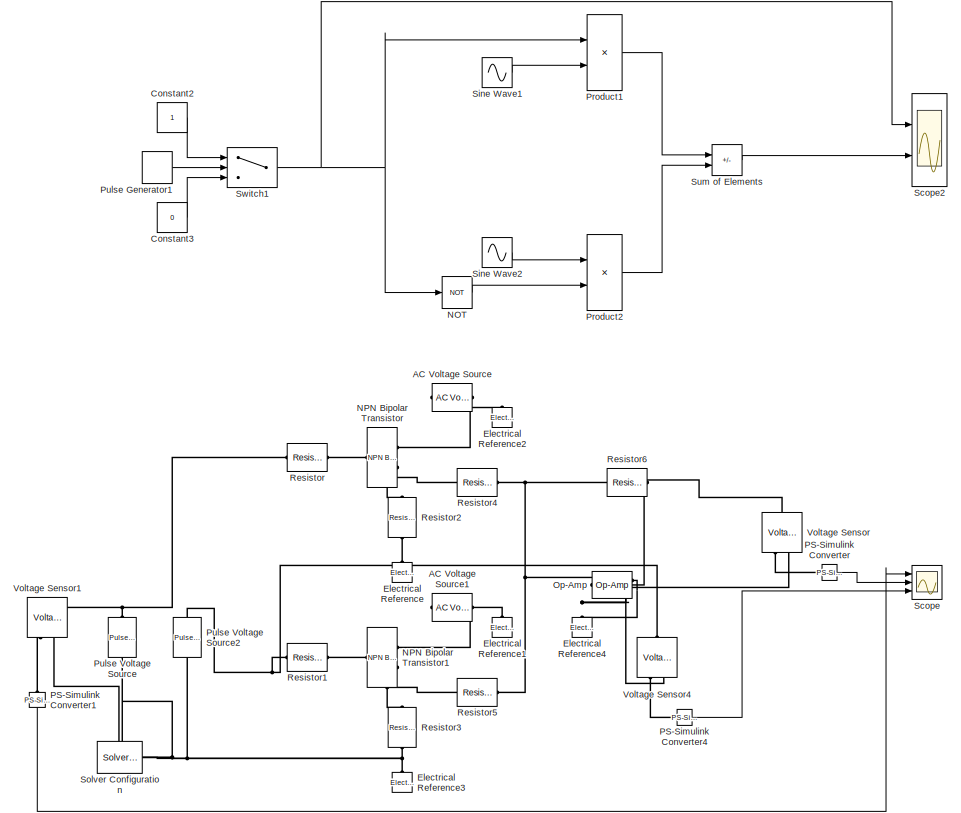
[diagram: root canvas - part 1/8, top left region]
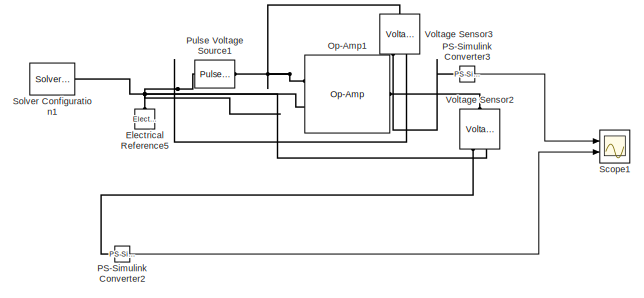
[diagram: root canvas - part 2/8, top center region]
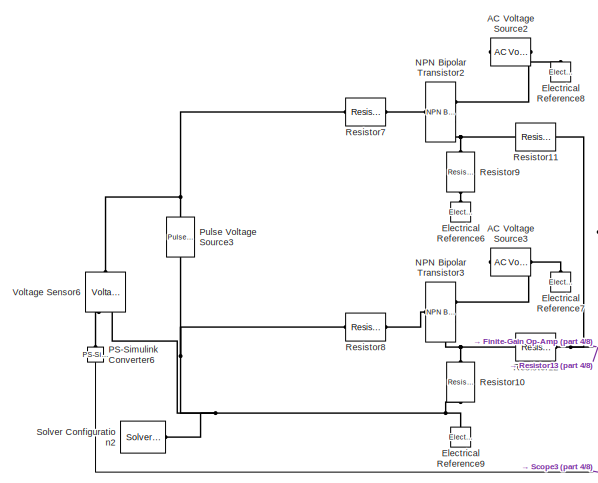
[diagram: root canvas - part 3/8, top left region]
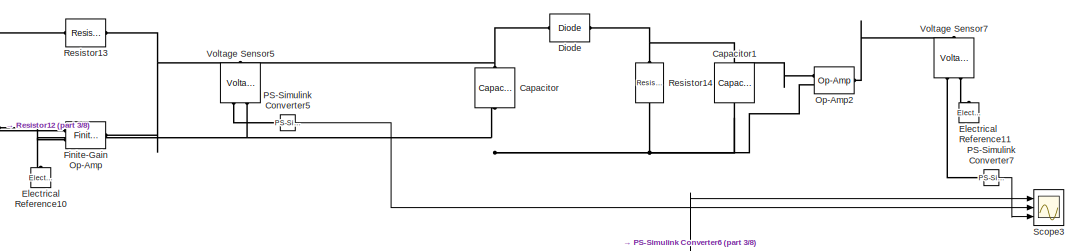
[diagram: root canvas - part 4/8, top center region]
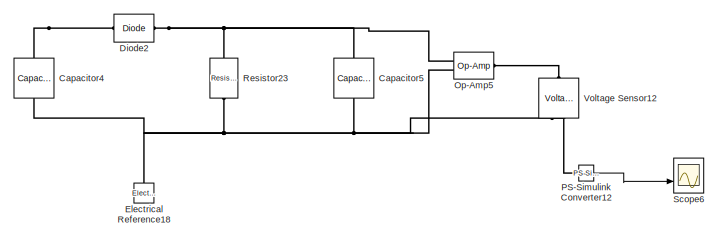
[diagram: root canvas - part 5/8, middle right region]
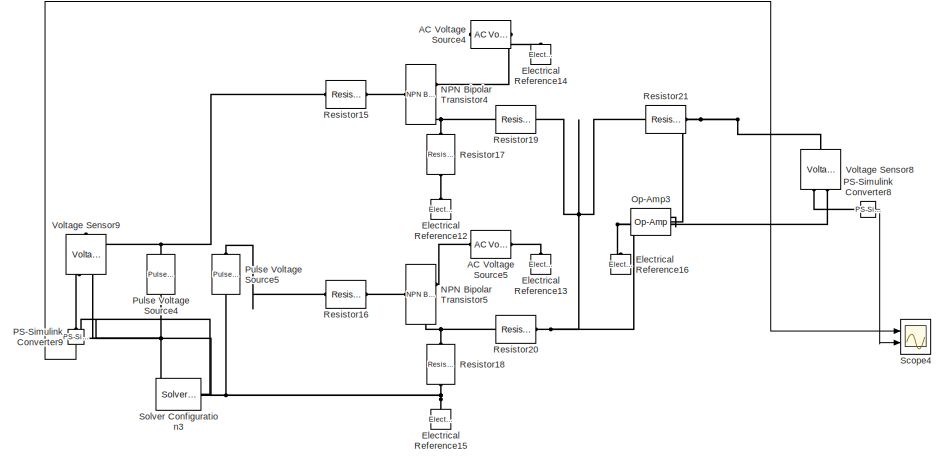
[diagram: root canvas - part 6/8, middle left region]
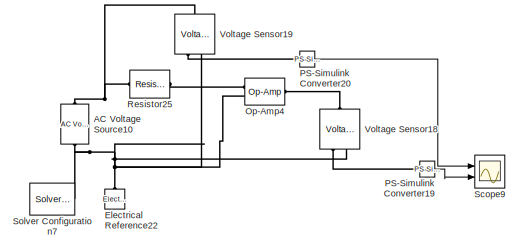
[diagram: root canvas - part 7/8, bottom right region]
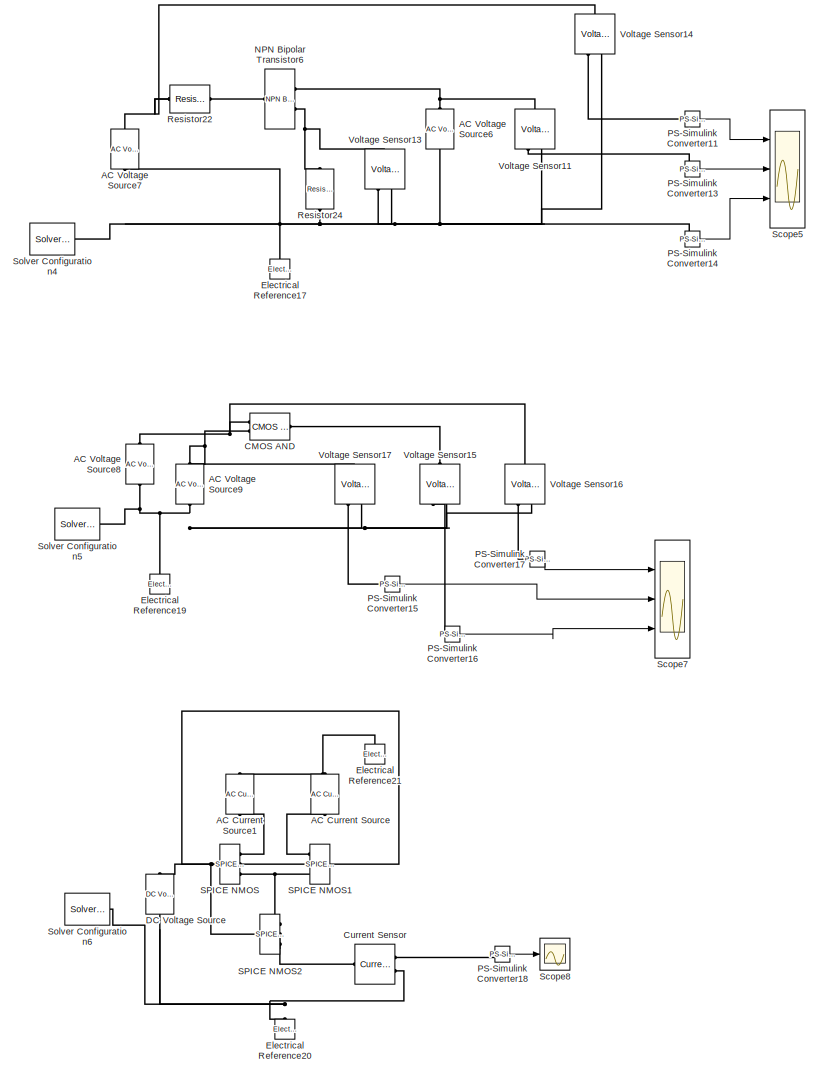
[diagram: root canvas - part 8/8, bottom left region]
MODEL slx_572a8d1ae359
KIND model
CONFIG AbsTol = auto
CONFIG EnableMultiTasking = off
CONFIG FixedStep = auto
CONFIG MaxStep = auto
CONFIG MinStep = auto
CONFIG RelTol = 1e-3
CONFIG SampleTimeConstraint = Unconstrained
CONFIG SolverName = VariableStepAuto
CONFIG StartTime = 0.0
CONFIG StopTime = 10
BLOCK [Reference] AC Current Source  REF=fl_lib/Electrical/Electrical Sources/AC Current Source
  Commented = on
  NameLocation = left
  Ports = [0, 0, 0, 0, 0, 1, 1]
  SourceBlock = fl_lib/Electrical/Electrical Sources/AC Current Source
  SourceProductBaseCode = SS
  SourceType = AC Current Source
BLOCK [Reference] AC Current Source1  REF=fl_lib/Electrical/Electrical Sources/AC Current Source
  Commented = on
  NameLocation = left
  Ports = [0, 0, 0, 0, 0, 1, 1]
  SourceBlock = fl_lib/Electrical/Electrical Sources/AC Current Source
  SourceProductBaseCode = SS
  SourceType = AC Current Source
BLOCK [Reference] AC Voltage Source  REF=fl_lib/Electrical/Electrical Sources/AC Voltage Source
  Commented = on
  NameLocation = top
  Ports = [0, 0, 0, 0, 0, 1, 1]
  SourceBlock = fl_lib/Electrical/Electrical Sources/AC Voltage Source
  SourceProductBaseCode = SS
  SourceType = AC Voltage Source
BLOCK [Reference] AC Voltage Source1  REF=fl_lib/Electrical/Electrical Sources/AC Voltage Source
  Commented = on
  NameLocation = top
  Ports = [0, 0, 0, 0, 0, 1, 1]
  SourceBlock = fl_lib/Electrical/Electrical Sources/AC Voltage Source
  SourceProductBaseCode = SS
  SourceType = AC Voltage Source
BLOCK [Reference] AC Voltage Source10  REF=fl_lib/Electrical/Electrical Sources/AC Voltage Source
  Commented = on
  NameLocation = right
  Ports = [0, 0, 0, 0, 0, 1, 1]
  SourceBlock = fl_lib/Electrical/Electrical Sources/AC Voltage Source
  SourceProductBaseCode = SS
  SourceType = AC Voltage Source
BLOCK [Reference] AC Voltage Source2  REF=fl_lib/Electrical/Electrical Sources/AC Voltage Source
  Commented = on
  NameLocation = top
  Ports = [0, 0, 0, 0, 0, 1, 1]
  SourceBlock = fl_lib/Electrical/Electrical Sources/AC Voltage Source
  SourceProductBaseCode = SS
  SourceType = AC Voltage Source
BLOCK [Reference] AC Voltage Source3  REF=fl_lib/Electrical/Electrical Sources/AC Voltage Source
  Commented = on
  NameLocation = top
  Ports = [0, 0, 0, 0, 0, 1, 1]
  SourceBlock = fl_lib/Electrical/Electrical Sources/AC Voltage Source
  SourceProductBaseCode = SS
  SourceType = AC Voltage Source
BLOCK [Reference] AC Voltage Source4  REF=fl_lib/Electrical/Electrical Sources/AC Voltage Source
  NameLocation = top
  Ports = [0, 0, 0, 0, 0, 1, 1]
  SourceBlock = fl_lib/Electrical/Electrical Sources/AC Voltage Source
  SourceProductBaseCode = SS
  SourceType = AC Voltage Source
BLOCK [Reference] AC Voltage Source5  REF=fl_lib/Electrical/Electrical Sources/AC Voltage Source
  NameLocation = top
  Ports = [0, 0, 0, 0, 0, 1, 1]
  SourceBlock = fl_lib/Electrical/Electrical Sources/AC Voltage Source
  SourceProductBaseCode = SS
  SourceType = AC Voltage Source
BLOCK [Reference] AC Voltage Source6  REF=fl_lib/Electrical/Electrical Sources/AC Voltage Source
  Commented = on
  NameLocation = right
  Ports = [0, 0, 0, 0, 0, 1, 1]
  SourceBlock = fl_lib/Electrical/Electrical Sources/AC Voltage Source
  SourceProductBaseCode = SS
  SourceType = AC Voltage Source
BLOCK [Reference] AC Voltage Source7  REF=fl_lib/Electrical/Electrical Sources/AC Voltage Source
  Commented = on
  NameLocation = right
  Ports = [0, 0, 0, 0, 0, 1, 1]
  SourceBlock = fl_lib/Electrical/Electrical Sources/AC Voltage Source
  SourceProductBaseCode = SS
  SourceType = AC Voltage Source
BLOCK [Reference] AC Voltage Source8  REF=fl_lib/Electrical/Electrical Sources/AC Voltage Source
  Commented = on
  NameLocation = right
  Ports = [0, 0, 0, 0, 0, 1, 1]
  SourceBlock = fl_lib/Electrical/Electrical Sources/AC Voltage Source
  SourceProductBaseCode = SS
  SourceType = AC Voltage Source
BLOCK [Reference] AC Voltage Source9  REF=fl_lib/Electrical/Electrical Sources/AC Voltage Source
  Commented = on
  NameLocation = right
  Ports = [0, 0, 0, 0, 0, 1, 1]
  SourceBlock = fl_lib/Electrical/Electrical Sources/AC Voltage Source
  SourceProductBaseCode = SS
  SourceType = AC Voltage Source
BLOCK [Reference] CMOS AND  REF=ee_lib/Integrated Circuits/Logic/CMOS AND
  Commented = on
  Ports = [0, 0, 0, 0, 0, 2, 1]
  SourceBlock = ee_lib/Integrated Circuits/Logic/CMOS AND
  SourceProductBaseCode = PS
  SourceType = CMOS AND
BLOCK [Reference] Capacitor  REF=fl_lib/Electrical/Electrical Elements/Capacitor
  Commented = on
  NameLocation = left
  Ports = [0, 0, 0, 0, 0, 1, 1]
  SourceBlock = fl_lib/Electrical/Electrical Elements/Capacitor
  SourceProductBaseCode = SS
  SourceType = Capacitor
BLOCK [Reference] Capacitor1  REF=fl_lib/Electrical/Electrical Elements/Capacitor
  Commented = on
  NameLocation = left
  Ports = [0, 0, 0, 0, 0, 1, 1]
  SourceBlock = fl_lib/Electrical/Electrical Elements/Capacitor
  SourceProductBaseCode = SS
  SourceType = Capacitor
BLOCK [Reference] Capacitor4  REF=fl_lib/Electrical/Electrical Elements/Capacitor
  Commented = on
  NameLocation = left
  Ports = [0, 0, 0, 0, 0, 1, 1]
  SourceBlock = fl_lib/Electrical/Electrical Elements/Capacitor
  SourceProductBaseCode = SS
  SourceType = Capacitor
BLOCK [Reference] Capacitor5  REF=fl_lib/Electrical/Electrical Elements/Capacitor
  Commented = on
  NameLocation = left
  Ports = [0, 0, 0, 0, 0, 1, 1]
  SourceBlock = fl_lib/Electrical/Electrical Elements/Capacitor
  SourceProductBaseCode = SS
  SourceType = Capacitor
BLOCK [Constant] Constant2
  Commented = on
BLOCK [Constant] Constant3
  Commented = on
  Value = 0
BLOCK [Reference] Current Sensor  REF=fl_lib/Electrical/Electrical Sensors/Current Sensor
  Commented = on
  Ports = [0, 0, 0, 0, 0, 1, 2]
  SourceBlock = fl_lib/Electrical/Electrical Sensors/Current Sensor
  SourceProductBaseCode = SS
  SourceType = Current Sensor
BLOCK [Reference] DC Voltage Source  REF=fl_lib/Electrical/Electrical Sources/DC Voltage Source
  Commented = on
  NameLocation = right
  Ports = [0, 0, 0, 0, 0, 1, 1]
  SourceBlock = fl_lib/Electrical/Electrical Sources/DC Voltage Source
  SourceProductBaseCode = SS
  SourceType = DC Voltage Source
BLOCK [Reference] Diode  REF=ee_lib/Semiconductors &
Converters/Diode
  Commented = on
  Ports = [0, 0, 0, 0, 0, 1, 1]
  SourceBlock = ee_lib/Semiconductors &\nConverters/Diode
  SourceProductBaseCode = PS
  SourceType = Diode
BLOCK [Reference] Diode2  REF=ee_lib/Semiconductors &
Converters/Diode
  Commented = on
  Ports = [0, 0, 0, 0, 0, 1, 1]
  SourceBlock = ee_lib/Semiconductors &\nConverters/Diode
  SourceProductBaseCode = PS
  SourceType = Diode
BLOCK [Reference] Electrical Reference  REF=fl_lib/Electrical/Electrical Elements/Electrical Reference
  Commented = on
  NameLocation = right
  Ports = [0, 0, 0, 0, 0, 1]
  SourceBlock = fl_lib/Electrical/Electrical Elements/Electrical Reference
  SourceProductBaseCode = SS
  SourceType = Electrical Reference
BLOCK [Reference] Electrical Reference1  REF=fl_lib/Electrical/Electrical Elements/Electrical Reference
  Commented = on
  NameLocation = right
  Ports = [0, 0, 0, 0, 0, 1]
  SourceBlock = fl_lib/Electrical/Electrical Elements/Electrical Reference
  SourceProductBaseCode = SS
  SourceType = Electrical Reference
BLOCK [Reference] Electrical Reference10  REF=fl_lib/Electrical/Electrical Elements/Electrical Reference
  Commented = on
  NameLocation = right
  Ports = [0, 0, 0, 0, 0, 1]
  SourceBlock = fl_lib/Electrical/Electrical Elements/Electrical Reference
  SourceProductBaseCode = SS
  SourceType = Electrical Reference
BLOCK [Reference] Electrical Reference11  REF=fl_lib/Electrical/Electrical Elements/Electrical Reference
  Commented = on
  NameLocation = right
  Ports = [0, 0, 0, 0, 0, 1]
  SourceBlock = fl_lib/Electrical/Electrical Elements/Electrical Reference
  SourceProductBaseCode = SS
  SourceType = Electrical Reference
BLOCK [Reference] Electrical Reference12  REF=fl_lib/Electrical/Electrical Elements/Electrical Reference
  NameLocation = right
  Ports = [0, 0, 0, 0, 0, 1]
  SourceBlock = fl_lib/Electrical/Electrical Elements/Electrical Reference
  SourceProductBaseCode = SS
  SourceType = Electrical Reference
BLOCK [Reference] Electrical Reference13  REF=fl_lib/Electrical/Electrical Elements/Electrical Reference
  NameLocation = right
  Ports = [0, 0, 0, 0, 0, 1]
  SourceBlock = fl_lib/Electrical/Electrical Elements/Electrical Reference
  SourceProductBaseCode = SS
  SourceType = Electrical Reference
BLOCK [Reference] Electrical Reference14  REF=fl_lib/Electrical/Electrical Elements/Electrical Reference
  NameLocation = right
  Ports = [0, 0, 0, 0, 0, 1]
  SourceBlock = fl_lib/Electrical/Electrical Elements/Electrical Reference
  SourceProductBaseCode = SS
  SourceType = Electrical Reference
BLOCK [Reference] Electrical Reference15  REF=fl_lib/Electrical/Electrical Elements/Electrical Reference
  NameLocation = right
  Ports = [0, 0, 0, 0, 0, 1]
  SourceBlock = fl_lib/Electrical/Electrical Elements/Electrical Reference
  SourceProductBaseCode = SS
  SourceType = Electrical Reference
BLOCK [Reference] Electrical Reference16  REF=fl_lib/Electrical/Electrical Elements/Electrical Reference
  NameLocation = right
  Ports = [0, 0, 0, 0, 0, 1]
  SourceBlock = fl_lib/Electrical/Electrical Elements/Electrical Reference
  SourceProductBaseCode = SS
  SourceType = Electrical Reference
BLOCK [Reference] Electrical Reference17  REF=fl_lib/Electrical/Electrical Elements/Electrical Reference
  Commented = on
  NameLocation = right
  Ports = [0, 0, 0, 0, 0, 1]
  SourceBlock = fl_lib/Electrical/Electrical Elements/Electrical Reference
  SourceProductBaseCode = SS
  SourceType = Electrical Reference
BLOCK [Reference] Electrical Reference18  REF=fl_lib/Electrical/Electrical Elements/Electrical Reference
  Commented = on
  NameLocation = right
  Ports = [0, 0, 0, 0, 0, 1]
  SourceBlock = fl_lib/Electrical/Electrical Elements/Electrical Reference
  SourceProductBaseCode = SS
  SourceType = Electrical Reference
BLOCK [Reference] Electrical Reference19  REF=fl_lib/Electrical/Electrical Elements/Electrical Reference
  Commented = on
  NameLocation = right
  Ports = [0, 0, 0, 0, 0, 1]
  SourceBlock = fl_lib/Electrical/Electrical Elements/Electrical Reference
  SourceProductBaseCode = SS
  SourceType = Electrical Reference
BLOCK [Reference] Electrical Reference2  REF=fl_lib/Electrical/Electrical Elements/Electrical Reference
  Commented = on
  NameLocation = right
  Ports = [0, 0, 0, 0, 0, 1]
  SourceBlock = fl_lib/Electrical/Electrical Elements/Electrical Reference
  SourceProductBaseCode = SS
  SourceType = Electrical Reference
BLOCK [Reference] Electrical Reference20  REF=fl_lib/Electrical/Electrical Elements/Electrical Reference
  Commented = on
  NameLocation = right
  Ports = [0, 0, 0, 0, 0, 1]
  SourceBlock = fl_lib/Electrical/Electrical Elements/Electrical Reference
  SourceProductBaseCode = SS
  SourceType = Electrical Reference
BLOCK [Reference] Electrical Reference21  REF=fl_lib/Electrical/Electrical Elements/Electrical Reference
  Commented = on
  NameLocation = right
  Ports = [0, 0, 0, 0, 0, 1]
  SourceBlock = fl_lib/Electrical/Electrical Elements/Electrical Reference
  SourceProductBaseCode = SS
  SourceType = Electrical Reference
BLOCK [Reference] Electrical Reference22  REF=fl_lib/Electrical/Electrical Elements/Electrical Reference
  Commented = on
  NameLocation = right
  Ports = [0, 0, 0, 0, 0, 1]
  SourceBlock = fl_lib/Electrical/Electrical Elements/Electrical Reference
  SourceProductBaseCode = SS
  SourceType = Electrical Reference
BLOCK [Reference] Electrical Reference3  REF=fl_lib/Electrical/Electrical Elements/Electrical Reference
  Commented = on
  NameLocation = right
  Ports = [0, 0, 0, 0, 0, 1]
  SourceBlock = fl_lib/Electrical/Electrical Elements/Electrical Reference
  SourceProductBaseCode = SS
  SourceType = Electrical Reference
BLOCK [Reference] Electrical Reference4  REF=fl_lib/Electrical/Electrical Elements/Electrical Reference
  Commented = on
  NameLocation = right
  Ports = [0, 0, 0, 0, 0, 1]
  SourceBlock = fl_lib/Electrical/Electrical Elements/Electrical Reference
  SourceProductBaseCode = SS
  SourceType = Electrical Reference
BLOCK [Reference] Electrical Reference5  REF=fl_lib/Electrical/Electrical Elements/Electrical Reference
  Commented = on
  NameLocation = right
  Ports = [0, 0, 0, 0, 0, 1]
  SourceBlock = fl_lib/Electrical/Electrical Elements/Electrical Reference
  SourceProductBaseCode = SS
  SourceType = Electrical Reference
BLOCK [Reference] Electrical Reference6  REF=fl_lib/Electrical/Electrical Elements/Electrical Reference
  Commented = on
  NameLocation = right
  Ports = [0, 0, 0, 0, 0, 1]
  SourceBlock = fl_lib/Electrical/Electrical Elements/Electrical Reference
  SourceProductBaseCode = SS
  SourceType = Electrical Reference
BLOCK [Reference] Electrical Reference7  REF=fl_lib/Electrical/Electrical Elements/Electrical Reference
  Commented = on
  NameLocation = right
  Ports = [0, 0, 0, 0, 0, 1]
  SourceBlock = fl_lib/Electrical/Electrical Elements/Electrical Reference
  SourceProductBaseCode = SS
  SourceType = Electrical Reference
BLOCK [Reference] Electrical Reference8  REF=fl_lib/Electrical/Electrical Elements/Electrical Reference
  Commented = on
  NameLocation = right
  Ports = [0, 0, 0, 0, 0, 1]
  SourceBlock = fl_lib/Electrical/Electrical Elements/Electrical Reference
  SourceProductBaseCode = SS
  SourceType = Electrical Reference
BLOCK [Reference] Electrical Reference9  REF=fl_lib/Electrical/Electrical Elements/Electrical Reference
  Commented = on
  NameLocation = right
  Ports = [0, 0, 0, 0, 0, 1]
  SourceBlock = fl_lib/Electrical/Electrical Elements/Electrical Reference
  SourceProductBaseCode = SS
  SourceType = Electrical Reference
BLOCK [Reference] Finite-Gain Op-Amp  REF=ee_lib/Integrated Circuits/Finite-Gain Op-Amp
  Commented = on
  Ports = [0, 0, 0, 0, 0, 2, 1]
  SourceBlock = ee_lib/Integrated Circuits/Finite-Gain Op-Amp
  SourceProductBaseCode = PS
  SourceType = Finite-Gain Op-Amp
BLOCK [Logic] NOT
  AllPortsSameDT = off
  Commented = on
  IconShape = distinctive
  Operator = NOT
  OutDataTypeStr = boolean
  Ports = [1, 1]
BLOCK [Reference] NPN Bipolar Transistor  REF=ee_lib/Semiconductors &
Converters/NPN Bipolar
Transistor
  Commented = on
  Ports = [0, 0, 0, 0, 0, 1, 2]
  SourceBlock = ee_lib/Semiconductors &\nConverters/NPN Bipolar\nTransistor
  SourceProductBaseCode = PS
  SourceType = NPN Bipolar\nTransistor
BLOCK [Reference] NPN Bipolar Transistor1  REF=ee_lib/Semiconductors &
Converters/NPN Bipolar
Transistor
  Commented = on
  Ports = [0, 0, 0, 0, 0, 1, 2]
  SourceBlock = ee_lib/Semiconductors &\nConverters/NPN Bipolar\nTransistor
  SourceProductBaseCode = PS
  SourceType = NPN Bipolar\nTransistor
BLOCK [Reference] NPN Bipolar Transistor2  REF=ee_lib/Semiconductors &
Converters/NPN Bipolar
Transistor
  Commented = on
  Ports = [0, 0, 0, 0, 0, 1, 2]
  SourceBlock = ee_lib/Semiconductors &\nConverters/NPN Bipolar\nTransistor
  SourceProductBaseCode = PS
  SourceType = NPN Bipolar\nTransistor
BLOCK [Reference] NPN Bipolar Transistor3  REF=ee_lib/Semiconductors &
Converters/NPN Bipolar
Transistor
  Commented = on
  Ports = [0, 0, 0, 0, 0, 1, 2]
  SourceBlock = ee_lib/Semiconductors &\nConverters/NPN Bipolar\nTransistor
  SourceProductBaseCode = PS
  SourceType = NPN Bipolar\nTransistor
BLOCK [Reference] NPN Bipolar Transistor4  REF=ee_lib/Semiconductors &
Converters/NPN Bipolar
Transistor
  Ports = [0, 0, 0, 0, 0, 1, 2]
  SourceBlock = ee_lib/Semiconductors &\nConverters/NPN Bipolar\nTransistor
  SourceProductBaseCode = PS
  SourceType = NPN Bipolar\nTransistor
BLOCK [Reference] NPN Bipolar Transistor5  REF=ee_lib/Semiconductors &
Converters/NPN Bipolar
Transistor
  Ports = [0, 0, 0, 0, 0, 1, 2]
  SourceBlock = ee_lib/Semiconductors &\nConverters/NPN Bipolar\nTransistor
  SourceProductBaseCode = PS
  SourceType = NPN Bipolar\nTransistor
BLOCK [Reference] NPN Bipolar Transistor6  REF=ee_lib/Semiconductors &
Converters/NPN Bipolar
Transistor
  Commented = on
  Ports = [0, 0, 0, 0, 0, 1, 2]
  SourceBlock = ee_lib/Semiconductors &\nConverters/NPN Bipolar\nTransistor
  SourceProductBaseCode = PS
  SourceType = NPN Bipolar\nTransistor
BLOCK [Reference] Op-Amp  REF=fl_lib/Electrical/Electrical Elements/Op-Amp
  Commented = on
  Ports = [0, 0, 0, 0, 0, 2, 1]
  SourceBlock = fl_lib/Electrical/Electrical Elements/Op-Amp
  SourceProductBaseCode = SS
  SourceType = Op-Amp
BLOCK [Reference] Op-Amp1  REF=fl_lib/Electrical/Electrical Elements/Op-Amp
  Commented = on
  Ports = [0, 0, 0, 0, 0, 2, 1]
  SourceBlock = fl_lib/Electrical/Electrical Elements/Op-Amp
  SourceProductBaseCode = SS
  SourceType = Op-Amp
BLOCK [Reference] Op-Amp2  REF=fl_lib/Electrical/Electrical Elements/Op-Amp
  Commented = on
  Ports = [0, 0, 0, 0, 0, 2, 1]
  SourceBlock = fl_lib/Electrical/Electrical Elements/Op-Amp
  SourceProductBaseCode = SS
  SourceType = Op-Amp
BLOCK [Reference] Op-Amp3  REF=fl_lib/Electrical/Electrical Elements/Op-Amp
  Ports = [0, 0, 0, 0, 0, 2, 1]
  SourceBlock = fl_lib/Electrical/Electrical Elements/Op-Amp
  SourceProductBaseCode = SS
  SourceType = Op-Amp
BLOCK [Reference] Op-Amp4  REF=fl_lib/Electrical/Electrical Elements/Op-Amp
  Commented = on
  Ports = [0, 0, 0, 0, 0, 2, 1]
  SourceBlock = fl_lib/Electrical/Electrical Elements/Op-Amp
  SourceProductBaseCode = SS
  SourceType = Op-Amp
BLOCK [Reference] Op-Amp5  REF=fl_lib/Electrical/Electrical Elements/Op-Amp
  Commented = on
  Ports = [0, 0, 0, 0, 0, 2, 1]
  SourceBlock = fl_lib/Electrical/Electrical Elements/Op-Amp
  SourceProductBaseCode = SS
  SourceType = Op-Amp
BLOCK [Reference] PS-Simulink Converter  REF=nesl_utility/PS-Simulink
Converter
  Commented = on
  Ports = [0, 1, 0, 0, 0, 1]
  SourceBlock = nesl_utility/PS-Simulink\nConverter
  SourceProductBaseCode = PW,SS
  SourceType = PS-Simulink\nConverter
BLOCK [Reference] PS-Simulink Converter1  REF=nesl_utility/PS-Simulink
Converter
  Commented = on
  NameLocation = left
  Ports = [0, 1, 0, 0, 0, 1]
  SourceBlock = nesl_utility/PS-Simulink\nConverter
  SourceProductBaseCode = PW,SS
  SourceType = PS-Simulink\nConverter
BLOCK [Reference] PS-Simulink Converter11  REF=nesl_utility/PS-Simulink
Converter
  Commented = on
  Ports = [0, 1, 0, 0, 0, 1]
  SourceBlock = nesl_utility/PS-Simulink\nConverter
  SourceProductBaseCode = PW,SS
  SourceType = PS-Simulink\nConverter
BLOCK [Reference] PS-Simulink Converter12  REF=nesl_utility/PS-Simulink
Converter
  Commented = on
  Ports = [0, 1, 0, 0, 0, 1]
  SourceBlock = nesl_utility/PS-Simulink\nConverter
  SourceProductBaseCode = PW,SS
  SourceType = PS-Simulink\nConverter
BLOCK [Reference] PS-Simulink Converter13  REF=nesl_utility/PS-Simulink
Converter
  Commented = on
  Ports = [0, 1, 0, 0, 0, 1]
  SourceBlock = nesl_utility/PS-Simulink\nConverter
  SourceProductBaseCode = PW,SS
  SourceType = PS-Simulink\nConverter
BLOCK [Reference] PS-Simulink Converter14  REF=nesl_utility/PS-Simulink
Converter
  Commented = on
  Ports = [0, 1, 0, 0, 0, 1]
  SourceBlock = nesl_utility/PS-Simulink\nConverter
  SourceProductBaseCode = PW,SS
  SourceType = PS-Simulink\nConverter
BLOCK [Reference] PS-Simulink Converter15  REF=nesl_utility/PS-Simulink
Converter
  Commented = on
  NameLocation = top
  Ports = [0, 1, 0, 0, 0, 1]
  SourceBlock = nesl_utility/PS-Simulink\nConverter
  SourceProductBaseCode = PW,SS
  SourceType = PS-Simulink\nConverter
BLOCK [Reference] PS-Simulink Converter16  REF=nesl_utility/PS-Simulink
Converter
  Commented = on
  Ports = [0, 1, 0, 0, 0, 1]
  SourceBlock = nesl_utility/PS-Simulink\nConverter
  SourceProductBaseCode = PW,SS
  SourceType = PS-Simulink\nConverter
BLOCK [Reference] PS-Simulink Converter17  REF=nesl_utility/PS-Simulink
Converter
  Commented = on
  Ports = [0, 1, 0, 0, 0, 1]
  SourceBlock = nesl_utility/PS-Simulink\nConverter
  SourceProductBaseCode = PW,SS
  SourceType = PS-Simulink\nConverter
BLOCK [Reference] PS-Simulink Converter18  REF=nesl_utility/PS-Simulink
Converter
  Commented = on
  Ports = [0, 1, 0, 0, 0, 1]
  SourceBlock = nesl_utility/PS-Simulink\nConverter
  SourceProductBaseCode = PW,SS
  SourceType = PS-Simulink\nConverter
BLOCK [Reference] PS-Simulink Converter19  REF=nesl_utility/PS-Simulink
Converter
  Commented = on
  Ports = [0, 1, 0, 0, 0, 1]
  SourceBlock = nesl_utility/PS-Simulink\nConverter
  SourceProductBaseCode = PW,SS
  SourceType = PS-Simulink\nConverter
BLOCK [Reference] PS-Simulink Converter2  REF=nesl_utility/PS-Simulink
Converter
  Commented = on
  Ports = [0, 1, 0, 0, 0, 1]
  SourceBlock = nesl_utility/PS-Simulink\nConverter
  SourceProductBaseCode = PW,SS
  SourceType = PS-Simulink\nConverter
BLOCK [Reference] PS-Simulink Converter20  REF=nesl_utility/PS-Simulink
Converter
  Commented = on
  Ports = [0, 1, 0, 0, 0, 1]
  SourceBlock = nesl_utility/PS-Simulink\nConverter
  SourceProductBaseCode = PW,SS
  SourceType = PS-Simulink\nConverter
BLOCK [Reference] PS-Simulink Converter3  REF=nesl_utility/PS-Simulink
Converter
  Commented = on
  NameLocation = top
  Ports = [0, 1, 0, 0, 0, 1]
  SourceBlock = nesl_utility/PS-Simulink\nConverter
  SourceProductBaseCode = PW,SS
  SourceType = PS-Simulink\nConverter
BLOCK [Reference] PS-Simulink Converter4  REF=nesl_utility/PS-Simulink
Converter
  Commented = on
  Ports = [0, 1, 0, 0, 0, 1]
  SourceBlock = nesl_utility/PS-Simulink\nConverter
  SourceProductBaseCode = PW,SS
  SourceType = PS-Simulink\nConverter
BLOCK [Reference] PS-Simulink Converter5  REF=nesl_utility/PS-Simulink
Converter
  Commented = on
  Ports = [0, 1, 0, 0, 0, 1]
  SourceBlock = nesl_utility/PS-Simulink\nConverter
  SourceProductBaseCode = PW,SS
  SourceType = PS-Simulink\nConverter
BLOCK [Reference] PS-Simulink Converter6  REF=nesl_utility/PS-Simulink
Converter
  Commented = on
  NameLocation = left
  Ports = [0, 1, 0, 0, 0, 1]
  SourceBlock = nesl_utility/PS-Simulink\nConverter
  SourceProductBaseCode = PW,SS
  SourceType = PS-Simulink\nConverter
BLOCK [Reference] PS-Simulink Converter7  REF=nesl_utility/PS-Simulink
Converter
  Commented = on
  Ports = [0, 1, 0, 0, 0, 1]
  SourceBlock = nesl_utility/PS-Simulink\nConverter
  SourceProductBaseCode = PW,SS
  SourceType = PS-Simulink\nConverter
BLOCK [Reference] PS-Simulink Converter8  REF=nesl_utility/PS-Simulink
Converter
  Ports = [0, 1, 0, 0, 0, 1]
  SourceBlock = nesl_utility/PS-Simulink\nConverter
  SourceProductBaseCode = PW,SS
  SourceType = PS-Simulink\nConverter
BLOCK [Reference] PS-Simulink Converter9  REF=nesl_utility/PS-Simulink
Converter
  NameLocation = left
  Ports = [0, 1, 0, 0, 0, 1]
  SourceBlock = nesl_utility/PS-Simulink\nConverter
  SourceProductBaseCode = PW,SS
  SourceType = PS-Simulink\nConverter
BLOCK [Product] Product1
  Commented = on
  Ports = [2, 1]
BLOCK [Product] Product2
  Commented = on
  Ports = [2, 1]
BLOCK [DiscretePulseGenerator] Pulse Generator1
  Commented = on
  Ports = [0, 1]
  PulseType = Time based
  PulseWidth = 50
BLOCK [Reference] Pulse Voltage Source  REF=ee_lib/Additional
Components/SPICE Sources/Pulse Voltage Source
  Commented = on
  NameLocation = right
  Ports = [0, 0, 0, 0, 0, 1, 1]
  SourceBlock = ee_lib/Additional\nComponents/SPICE Sources/Pulse Voltage Source
  SourceProductBaseCode = PS
  SourceType = Pulse Voltage Source
BLOCK [Reference] Pulse Voltage Source1  REF=ee_lib/Additional
Components/SPICE Sources/Pulse Voltage Source
  Commented = on
  Ports = [0, 0, 0, 0, 0, 1, 1]
  SourceBlock = ee_lib/Additional\nComponents/SPICE Sources/Pulse Voltage Source
  SourceProductBaseCode = PS
  SourceType = Pulse Voltage Source
BLOCK [Reference] Pulse Voltage Source2  REF=ee_lib/Additional
Components/SPICE Sources/Pulse Voltage Source
  Commented = on
  NameLocation = right
  Ports = [0, 0, 0, 0, 0, 1, 1]
  SourceBlock = ee_lib/Additional\nComponents/SPICE Sources/Pulse Voltage Source
  SourceProductBaseCode = PS
  SourceType = Pulse Voltage Source
BLOCK [Reference] Pulse Voltage Source3  REF=ee_lib/Additional
Components/SPICE Sources/Pulse Voltage Source
  Commented = on
  NameLocation = right
  Ports = [0, 0, 0, 0, 0, 1, 1]
  SourceBlock = ee_lib/Additional\nComponents/SPICE Sources/Pulse Voltage Source
  SourceProductBaseCode = PS
  SourceType = Pulse Voltage Source
BLOCK [Reference] Pulse Voltage Source4  REF=ee_lib/Additional
Components/SPICE Sources/Pulse Voltage Source
  NameLocation = right
  Ports = [0, 0, 0, 0, 0, 1, 1]
  SourceBlock = ee_lib/Additional\nComponents/SPICE Sources/Pulse Voltage Source
  SourceProductBaseCode = PS
  SourceType = Pulse Voltage Source
BLOCK [Reference] Pulse Voltage Source5  REF=ee_lib/Additional
Components/SPICE Sources/Pulse Voltage Source
  NameLocation = right
  Ports = [0, 0, 0, 0, 0, 1, 1]
  SourceBlock = ee_lib/Additional\nComponents/SPICE Sources/Pulse Voltage Source
  SourceProductBaseCode = PS
  SourceType = Pulse Voltage Source
BLOCK [Reference] Resistor  REF=fl_lib/Electrical/Electrical Elements/Resistor
  Commented = on
  Ports = [0, 0, 0, 0, 0, 1, 1]
  SourceBlock = fl_lib/Electrical/Electrical Elements/Resistor
  SourceProductBaseCode = SS
  SourceType = Resistor
BLOCK [Reference] Resistor1  REF=fl_lib/Electrical/Electrical Elements/Resistor
  Commented = on
  Ports = [0, 0, 0, 0, 0, 1, 1]
  SourceBlock = fl_lib/Electrical/Electrical Elements/Resistor
  SourceProductBaseCode = SS
  SourceType = Resistor
BLOCK [Reference] Resistor10  REF=fl_lib/Electrical/Electrical Elements/Resistor
  Commented = on
  NameLocation = left
  Ports = [0, 0, 0, 0, 0, 1, 1]
  SourceBlock = fl_lib/Electrical/Electrical Elements/Resistor
  SourceProductBaseCode = SS
  SourceType = Resistor
BLOCK [Reference] Resistor11  REF=fl_lib/Electrical/Electrical Elements/Resistor
  Commented = on
  Ports = [0, 0, 0, 0, 0, 1, 1]
  SourceBlock = fl_lib/Electrical/Electrical Elements/Resistor
  SourceProductBaseCode = SS
  SourceType = Resistor
BLOCK [Reference] Resistor12  REF=fl_lib/Electrical/Electrical Elements/Resistor
  Commented = on
  Ports = [0, 0, 0, 0, 0, 1, 1]
  SourceBlock = fl_lib/Electrical/Electrical Elements/Resistor
  SourceProductBaseCode = SS
  SourceType = Resistor
BLOCK [Reference] Resistor13  REF=fl_lib/Electrical/Electrical Elements/Resistor
  Commented = on
  Ports = [0, 0, 0, 0, 0, 1, 1]
  SourceBlock = fl_lib/Electrical/Electrical Elements/Resistor
  SourceProductBaseCode = SS
  SourceType = Resistor
BLOCK [Reference] Resistor14  REF=fl_lib/Electrical/Electrical Elements/Resistor
  Commented = on
  NameLocation = left
  Ports = [0, 0, 0, 0, 0, 1, 1]
  SourceBlock = fl_lib/Electrical/Electrical Elements/Resistor
  SourceProductBaseCode = SS
  SourceType = Resistor
BLOCK [Reference] Resistor15  REF=fl_lib/Electrical/Electrical Elements/Resistor
  Ports = [0, 0, 0, 0, 0, 1, 1]
  SourceBlock = fl_lib/Electrical/Electrical Elements/Resistor
  SourceProductBaseCode = SS
  SourceType = Resistor
BLOCK [Reference] Resistor16  REF=fl_lib/Electrical/Electrical Elements/Resistor
  Ports = [0, 0, 0, 0, 0, 1, 1]
  SourceBlock = fl_lib/Electrical/Electrical Elements/Resistor
  SourceProductBaseCode = SS
  SourceType = Resistor
BLOCK [Reference] Resistor17  REF=fl_lib/Electrical/Electrical Elements/Resistor
  NameLocation = left
  Ports = [0, 0, 0, 0, 0, 1, 1]
  SourceBlock = fl_lib/Electrical/Electrical Elements/Resistor
  SourceProductBaseCode = SS
  SourceType = Resistor
BLOCK [Reference] Resistor18  REF=fl_lib/Electrical/Electrical Elements/Resistor
  NameLocation = left
  Ports = [0, 0, 0, 0, 0, 1, 1]
  SourceBlock = fl_lib/Electrical/Electrical Elements/Resistor
  SourceProductBaseCode = SS
  SourceType = Resistor
BLOCK [Reference] Resistor19  REF=fl_lib/Electrical/Electrical Elements/Resistor
  Ports = [0, 0, 0, 0, 0, 1, 1]
  SourceBlock = fl_lib/Electrical/Electrical Elements/Resistor
  SourceProductBaseCode = SS
  SourceType = Resistor
BLOCK [Reference] Resistor2  REF=fl_lib/Electrical/Electrical Elements/Resistor
  Commented = on
  NameLocation = left
  Ports = [0, 0, 0, 0, 0, 1, 1]
  SourceBlock = fl_lib/Electrical/Electrical Elements/Resistor
  SourceProductBaseCode = SS
  SourceType = Resistor
BLOCK [Reference] Resistor20  REF=fl_lib/Electrical/Electrical Elements/Resistor
  Ports = [0, 0, 0, 0, 0, 1, 1]
  SourceBlock = fl_lib/Electrical/Electrical Elements/Resistor
  SourceProductBaseCode = SS
  SourceType = Resistor
BLOCK [Reference] Resistor21  REF=fl_lib/Electrical/Electrical Elements/Resistor
  Ports = [0, 0, 0, 0, 0, 1, 1]
  SourceBlock = fl_lib/Electrical/Electrical Elements/Resistor
  SourceProductBaseCode = SS
  SourceType = Resistor
BLOCK [Reference] Resistor22  REF=fl_lib/Electrical/Electrical Elements/Resistor
  Commented = on
  Ports = [0, 0, 0, 0, 0, 1, 1]
  SourceBlock = fl_lib/Electrical/Electrical Elements/Resistor
  SourceProductBaseCode = SS
  SourceType = Resistor
BLOCK [Reference] Resistor23  REF=fl_lib/Electrical/Electrical Elements/Resistor
  Commented = on
  NameLocation = left
  Ports = [0, 0, 0, 0, 0, 1, 1]
  SourceBlock = fl_lib/Electrical/Electrical Elements/Resistor
  SourceProductBaseCode = SS
  SourceType = Resistor
BLOCK [Reference] Resistor24  REF=fl_lib/Electrical/Electrical Elements/Resistor
  Commented = on
  NameLocation = left
  Ports = [0, 0, 0, 0, 0, 1, 1]
  SourceBlock = fl_lib/Electrical/Electrical Elements/Resistor
  SourceProductBaseCode = SS
  SourceType = Resistor
BLOCK [Reference] Resistor25  REF=fl_lib/Electrical/Electrical Elements/Resistor
  Commented = on
  Ports = [0, 0, 0, 0, 0, 1, 1]
  SourceBlock = fl_lib/Electrical/Electrical Elements/Resistor
  SourceProductBaseCode = SS
  SourceType = Resistor
BLOCK [Reference] Resistor3  REF=fl_lib/Electrical/Electrical Elements/Resistor
  Commented = on
  NameLocation = left
  Ports = [0, 0, 0, 0, 0, 1, 1]
  SourceBlock = fl_lib/Electrical/Electrical Elements/Resistor
  SourceProductBaseCode = SS
  SourceType = Resistor
BLOCK [Reference] Resistor4  REF=fl_lib/Electrical/Electrical Elements/Resistor
  Commented = on
  Ports = [0, 0, 0, 0, 0, 1, 1]
  SourceBlock = fl_lib/Electrical/Electrical Elements/Resistor
  SourceProductBaseCode = SS
  SourceType = Resistor
BLOCK [Reference] Resistor5  REF=fl_lib/Electrical/Electrical Elements/Resistor
  Commented = on
  Ports = [0, 0, 0, 0, 0, 1, 1]
  SourceBlock = fl_lib/Electrical/Electrical Elements/Resistor
  SourceProductBaseCode = SS
  SourceType = Resistor
BLOCK [Reference] Resistor6  REF=fl_lib/Electrical/Electrical Elements/Resistor
  Commented = on
  Ports = [0, 0, 0, 0, 0, 1, 1]
  SourceBlock = fl_lib/Electrical/Electrical Elements/Resistor
  SourceProductBaseCode = SS
  SourceType = Resistor
BLOCK [Reference] Resistor7  REF=fl_lib/Electrical/Electrical Elements/Resistor
  Commented = on
  Ports = [0, 0, 0, 0, 0, 1, 1]
  SourceBlock = fl_lib/Electrical/Electrical Elements/Resistor
  SourceProductBaseCode = SS
  SourceType = Resistor
BLOCK [Reference] Resistor8  REF=fl_lib/Electrical/Electrical Elements/Resistor
  Commented = on
  Ports = [0, 0, 0, 0, 0, 1, 1]
  SourceBlock = fl_lib/Electrical/Electrical Elements/Resistor
  SourceProductBaseCode = SS
  SourceType = Resistor
BLOCK [Reference] Resistor9  REF=fl_lib/Electrical/Electrical Elements/Resistor
  Commented = on
  NameLocation = left
  Ports = [0, 0, 0, 0, 0, 1, 1]
  SourceBlock = fl_lib/Electrical/Electrical Elements/Resistor
  SourceProductBaseCode = SS
  SourceType = Resistor
BLOCK [Reference] SPICE NMOS  REF=ee_lib/Additional
Components/SPICE Semiconductors/SPICE NMOS
  Commented = on
  Ports = [0, 0, 0, 0, 0, 1, 3]
  SourceBlock = ee_lib/Additional\nComponents/SPICE Semiconductors/SPICE NMOS
  SourceProductBaseCode = PS
  SourceType = SPICE NMOS
BLOCK [Reference] SPICE NMOS1  REF=ee_lib/Additional
Components/SPICE Semiconductors/SPICE NMOS
  Commented = on
  Ports = [0, 0, 0, 0, 0, 1, 3]
  SourceBlock = ee_lib/Additional\nComponents/SPICE Semiconductors/SPICE NMOS
  SourceProductBaseCode = PS
  SourceType = SPICE NMOS
BLOCK [Reference] SPICE NMOS2  REF=ee_lib/Additional
Components/SPICE Semiconductors/SPICE NMOS
  Commented = on
  Ports = [0, 0, 0, 0, 0, 1, 3]
  SourceBlock = ee_lib/Additional\nComponents/SPICE Semiconductors/SPICE NMOS
  SourceProductBaseCode = PS
  SourceType = SPICE NMOS
BLOCK [Scope] Scope
  Commented = on
  Floating = off
  NumInputPorts = 3
  Ports = [3]
  ScopeSpecificationString = Simulink.scopes.TimeScopeBlockCfg('CurrentConfiguration', extmgr.ConfigurationSet(extmgr.Configuration('Core','General UI',true),extmgr.Configuration('Core','Source UI',true),extmgr.Configuration('Sources','WiredSimulink',true,'DataLoggingVariableName','ScopeData1'),extmgr.Configuration('Visuals','Time Domain',true,'SerializedDisplays',{struct('MinYLimReal','-0.125','MaxYLimReal','1.125','YLabelRe...<+2802ch>
BLOCK [Scope] Scope1
  Commented = on
  Floating = off
  NumInputPorts = 2
  Ports = [2]
  ScopeSpecificationString = Simulink.scopes.TimeScopeBlockCfg('CurrentConfiguration', extmgr.ConfigurationSet(extmgr.Configuration('Core','General UI',true),extmgr.Configuration('Core','Source UI',true),extmgr.Configuration('Sources','WiredSimulink',true,'DataLoggingVariableName','ScopeData2'),extmgr.Configuration('Visuals','Time Domain',true,'SerializedDisplays',{struct('MinYLimReal','-0.625','MaxYLimReal','5.625','YLabelRe...<+2102ch>
BLOCK [Scope] Scope2
  Commented = on
  Floating = off
  NumInputPorts = 2
  Ports = [2]
  ScopeSpecificationString = Simulink.scopes.TimeScopeBlockCfg('CurrentConfiguration', extmgr.ConfigurationSet(extmgr.Configuration('Core','General UI',true),extmgr.Configuration('Core','Source UI',true),extmgr.Configuration('Sources','WiredSimulink',true,'DataLoggingVariableName','ScopeData1'),extmgr.Configuration('Visuals','Time Domain',true,'SerializedDisplays',{struct('MinYLimReal','0.9','MaxYLimReal','1.1','YLabelReal','...<+2077ch>
BLOCK [Scope] Scope3
  Commented = on
  Floating = off
  NumInputPorts = 3
  Ports = [3]
  ScopeSpecificationString = Simulink.scopes.TimeScopeBlockCfg('CurrentConfiguration', extmgr.ConfigurationSet(extmgr.Configuration('Core','General UI',true),extmgr.Configuration('Core','Source UI',true),extmgr.Configuration('Sources','WiredSimulink',true,'DataLoggingVariableName','ScopeData1'),extmgr.Configuration('Visuals','Time Domain',true,'SerializedDisplays',{struct('MinYLimReal','-0.125','MaxYLimReal','1.125','YLabelRe...<+2804ch>
BLOCK [Scope] Scope4
  Floating = off
  NumInputPorts = 2
  Ports = [2]
  ScopeSpecificationString = Simulink.scopes.TimeScopeBlockCfg('CurrentConfiguration', extmgr.ConfigurationSet(extmgr.Configuration('Core','General UI',true),extmgr.Configuration('Core','Source UI',true),extmgr.Configuration('Sources','WiredSimulink',true,'DataLoggingVariableName','ScopeData1'),extmgr.Configuration('Visuals','Time Domain',true,'SerializedDisplays',{struct('MinYLimReal','-0.125','MaxYLimReal','1.125','YLabelRe...<+3317ch>
BLOCK [Scope] Scope5
  Commented = on
  Floating = off
  NumInputPorts = 3
  Ports = [3]
  ScopeSpecificationString = Simulink.scopes.TimeScopeBlockCfg('CurrentConfiguration', extmgr.ConfigurationSet(extmgr.Configuration('Core','General UI',true),extmgr.Configuration('Core','Source UI',true),extmgr.Configuration('Sources','WiredSimulink',true,'DataLoggingVariableName','ScopeData2'),extmgr.Configuration('Visuals','Time Domain',true,'SerializedDisplays',{struct('MinYLimReal','-0.000000000000000000000000000000000000...<+5189ch>
BLOCK [Scope] Scope6
  Commented = on
  Floating = off
  NumInputPorts = 2
  Ports = [2]
  ScopeSpecificationString = Simulink.scopes.TimeScopeBlockCfg('CurrentConfiguration', extmgr.ConfigurationSet(extmgr.Configuration('Core','General UI',true),extmgr.Configuration('Core','Source UI',true),extmgr.Configuration('Sources','WiredSimulink',true,'DataLoggingVariableName','ScopeData3'),extmgr.Configuration('Visuals','Time Domain',true,'SerializedDisplays',{struct('MinYLimReal','-0.125','MaxYLimReal','1.125','YLabelRe...<+2802ch>
BLOCK [Scope] Scope7
  Commented = on
  Floating = off
  NumInputPorts = 3
  Ports = [3]
  ScopeSpecificationString = Simulink.scopes.TimeScopeBlockCfg('CurrentConfiguration', extmgr.ConfigurationSet(extmgr.Configuration('Core','General UI',true),extmgr.Configuration('Core','Source UI',true),extmgr.Configuration('Sources','WiredSimulink',true,'DataLoggingVariableName','ScopeData4'),extmgr.Configuration('Visuals','Time Domain',true,'SerializedDisplays',{struct('MinYLimReal','-0.000000000000000000000000000000000000...<+4591ch>
BLOCK [Scope] Scope8
  Commented = on
  Floating = off
  NumInputPorts = 1
  Ports = [1]
  ScopeSpecificationString = Simulink.scopes.TimeScopeBlockCfg('CurrentConfiguration', extmgr.ConfigurationSet(extmgr.Configuration('Core','General UI',true),extmgr.Configuration('Core','Source UI',true),extmgr.Configuration('Sources','WiredSimulink',true,'DataLoggingVariableName','ScopeData5'),extmgr.Configuration('Visuals','Time Domain',true,'SerializedDisplays',{struct('MinYLimReal','-10.00000','MaxYLimReal','10.00000','YL...<+1689ch>
BLOCK [Scope] Scope9
  Commented = on
  Floating = off
  NumInputPorts = 2
  Ports = [2]
  ScopeSpecificationString = Simulink.scopes.TimeScopeBlockCfg('CurrentConfiguration', extmgr.ConfigurationSet(extmgr.Configuration('Core','General UI',true),extmgr.Configuration('Core','Source UI',true),extmgr.Configuration('Sources','WiredSimulink',true,'DataLoggingVariableName','ScopeData6'),extmgr.Configuration('Visuals','Time Domain',true,'SerializedDisplays',{struct('MinYLimReal','-3674.875','MaxYLimReal','33073.875','Y...<+1450ch>
BLOCK [Sin] Sine Wave1
  Amplitude = 14.142
  Commented = on
  Frequency = 2*pi*100
  Phase = 90
  Ports = [0, 1]
  SampleTime = 0
BLOCK [Sin] Sine Wave2
  Amplitude = 14.142
  Commented = on
  Frequency = 2*pi*1000
  Phase = 90
  Ports = [0, 1]
  SampleTime = 0
BLOCK [Reference] Solver Configuration  REF=nesl_utility/Solver
Configuration
  Commented = on
  Ports = [0, 0, 0, 0, 0, 0, 1]
  SourceBlock = nesl_utility/Solver\nConfiguration
  SourceProductBaseCode = PW,SS
  SourceType = Solver\nConfiguration
BLOCK [Reference] Solver Configuration1  REF=nesl_utility/Solver
Configuration
  Commented = on
  Ports = [0, 0, 0, 0, 0, 0, 1]
  SourceBlock = nesl_utility/Solver\nConfiguration
  SourceProductBaseCode = PW,SS
  SourceType = Solver\nConfiguration
BLOCK [Reference] Solver Configuration2  REF=nesl_utility/Solver
Configuration
  Commented = on
  Ports = [0, 0, 0, 0, 0, 0, 1]
  SourceBlock = nesl_utility/Solver\nConfiguration
  SourceProductBaseCode = PW,SS
  SourceType = Solver\nConfiguration
BLOCK [Reference] Solver Configuration3  REF=nesl_utility/Solver
Configuration
  Ports = [0, 0, 0, 0, 0, 0, 1]
  SourceBlock = nesl_utility/Solver\nConfiguration
  SourceProductBaseCode = PW,SS
  SourceType = Solver\nConfiguration
BLOCK [Reference] Solver Configuration4  REF=nesl_utility/Solver
Configuration
  Commented = on
  Ports = [0, 0, 0, 0, 0, 0, 1]
  SourceBlock = nesl_utility/Solver\nConfiguration
  SourceProductBaseCode = PW,SS
  SourceType = Solver\nConfiguration
BLOCK [Reference] Solver Configuration5  REF=nesl_utility/Solver
Configuration
  Commented = on
  Ports = [0, 0, 0, 0, 0, 0, 1]
  SourceBlock = nesl_utility/Solver\nConfiguration
  SourceProductBaseCode = PW,SS
  SourceType = Solver\nConfiguration
BLOCK [Reference] Solver Configuration6  REF=nesl_utility/Solver
Configuration
  Commented = on
  Ports = [0, 0, 0, 0, 0, 0, 1]
  SourceBlock = nesl_utility/Solver\nConfiguration
  SourceProductBaseCode = PW,SS
  SourceType = Solver\nConfiguration
BLOCK [Reference] Solver Configuration7  REF=nesl_utility/Solver
Configuration
  Commented = on
  Ports = [0, 0, 0, 0, 0, 0, 1]
  SourceBlock = nesl_utility/Solver\nConfiguration
  SourceProductBaseCode = PW,SS
  SourceType = Solver\nConfiguration
BLOCK [Sum] Sum of Elements
  Commented = on
  IconShape = rectangular
  Inputs = +-
  Ports = [2, 1]
BLOCK [Switch] Switch1
  Commented = on
  InputSameDT = off
  SaturateOnIntegerOverflow = off
  Threshold = 1
BLOCK [Reference] Voltage Sensor  REF=fl_lib/Electrical/Electrical Sensors/Voltage Sensor
  Commented = on
  NameLocation = right
  Ports = [0, 0, 0, 0, 0, 1, 2]
  SourceBlock = fl_lib/Electrical/Electrical Sensors/Voltage Sensor
  SourceProductBaseCode = SS
  SourceType = Voltage Sensor
BLOCK [Reference] Voltage Sensor1  REF=fl_lib/Electrical/Electrical Sensors/Voltage Sensor
  Commented = on
  NameLocation = right
  Ports = [0, 0, 0, 0, 0, 1, 2]
  SourceBlock = fl_lib/Electrical/Electrical Sensors/Voltage Sensor
  SourceProductBaseCode = SS
  SourceType = Voltage Sensor
BLOCK [Reference] Voltage Sensor11  REF=fl_lib/Electrical/Electrical Sensors/Voltage Sensor
  Commented = on
  NameLocation = right
  Ports = [0, 0, 0, 0, 0, 1, 2]
  SourceBlock = fl_lib/Electrical/Electrical Sensors/Voltage Sensor
  SourceProductBaseCode = SS
  SourceType = Voltage Sensor
BLOCK [Reference] Voltage Sensor12  REF=fl_lib/Electrical/Electrical Sensors/Voltage Sensor
  Commented = on
  NameLocation = right
  Ports = [0, 0, 0, 0, 0, 1, 2]
  SourceBlock = fl_lib/Electrical/Electrical Sensors/Voltage Sensor
  SourceProductBaseCode = SS
  SourceType = Voltage Sensor
BLOCK [Reference] Voltage Sensor13  REF=fl_lib/Electrical/Electrical Sensors/Voltage Sensor
  Commented = on
  NameLocation = right
  Ports = [0, 0, 0, 0, 0, 1, 2]
  SourceBlock = fl_lib/Electrical/Electrical Sensors/Voltage Sensor
  SourceProductBaseCode = SS
  SourceType = Voltage Sensor
BLOCK [Reference] Voltage Sensor14  REF=fl_lib/Electrical/Electrical Sensors/Voltage Sensor
  Commented = on
  NameLocation = right
  Ports = [0, 0, 0, 0, 0, 1, 2]
  SourceBlock = fl_lib/Electrical/Electrical Sensors/Voltage Sensor
  SourceProductBaseCode = SS
  SourceType = Voltage Sensor
BLOCK [Reference] Voltage Sensor15  REF=fl_lib/Electrical/Electrical Sensors/Voltage Sensor
  Commented = on
  NameLocation = right
  Ports = [0, 0, 0, 0, 0, 1, 2]
  SourceBlock = fl_lib/Electrical/Electrical Sensors/Voltage Sensor
  SourceProductBaseCode = SS
  SourceType = Voltage Sensor
BLOCK [Reference] Voltage Sensor16  REF=fl_lib/Electrical/Electrical Sensors/Voltage Sensor
  Commented = on
  NameLocation = right
  Ports = [0, 0, 0, 0, 0, 1, 2]
  SourceBlock = fl_lib/Electrical/Electrical Sensors/Voltage Sensor
  SourceProductBaseCode = SS
  SourceType = Voltage Sensor
BLOCK [Reference] Voltage Sensor17  REF=fl_lib/Electrical/Electrical Sensors/Voltage Sensor
  Commented = on
  NameLocation = right
  Ports = [0, 0, 0, 0, 0, 1, 2]
  SourceBlock = fl_lib/Electrical/Electrical Sensors/Voltage Sensor
  SourceProductBaseCode = SS
  SourceType = Voltage Sensor
BLOCK [Reference] Voltage Sensor18  REF=fl_lib/Electrical/Electrical Sensors/Voltage Sensor
  Commented = on
  NameLocation = right
  Ports = [0, 0, 0, 0, 0, 1, 2]
  SourceBlock = fl_lib/Electrical/Electrical Sensors/Voltage Sensor
  SourceProductBaseCode = SS
  SourceType = Voltage Sensor
BLOCK [Reference] Voltage Sensor19  REF=fl_lib/Electrical/Electrical Sensors/Voltage Sensor
  Commented = on
  NameLocation = right
  Ports = [0, 0, 0, 0, 0, 1, 2]
  SourceBlock = fl_lib/Electrical/Electrical Sensors/Voltage Sensor
  SourceProductBaseCode = SS
  SourceType = Voltage Sensor
BLOCK [Reference] Voltage Sensor2  REF=fl_lib/Electrical/Electrical Sensors/Voltage Sensor
  Commented = on
  NameLocation = right
  Ports = [0, 0, 0, 0, 0, 1, 2]
  SourceBlock = fl_lib/Electrical/Electrical Sensors/Voltage Sensor
  SourceProductBaseCode = SS
  SourceType = Voltage Sensor
BLOCK [Reference] Voltage Sensor3  REF=fl_lib/Electrical/Electrical Sensors/Voltage Sensor
  Commented = on
  NameLocation = right
  Ports = [0, 0, 0, 0, 0, 1, 2]
  SourceBlock = fl_lib/Electrical/Electrical Sensors/Voltage Sensor
  SourceProductBaseCode = SS
  SourceType = Voltage Sensor
BLOCK [Reference] Voltage Sensor4  REF=fl_lib/Electrical/Electrical Sensors/Voltage Sensor
  Commented = on
  NameLocation = right
  Ports = [0, 0, 0, 0, 0, 1, 2]
  SourceBlock = fl_lib/Electrical/Electrical Sensors/Voltage Sensor
  SourceProductBaseCode = SS
  SourceType = Voltage Sensor
BLOCK [Reference] Voltage Sensor5  REF=fl_lib/Electrical/Electrical Sensors/Voltage Sensor
  Commented = on
  NameLocation = right
  Ports = [0, 0, 0, 0, 0, 1, 2]
  SourceBlock = fl_lib/Electrical/Electrical Sensors/Voltage Sensor
  SourceProductBaseCode = SS
  SourceType = Voltage Sensor
BLOCK [Reference] Voltage Sensor6  REF=fl_lib/Electrical/Electrical Sensors/Voltage Sensor
  Commented = on
  NameLocation = right
  Ports = [0, 0, 0, 0, 0, 1, 2]
  SourceBlock = fl_lib/Electrical/Electrical Sensors/Voltage Sensor
  SourceProductBaseCode = SS
  SourceType = Voltage Sensor
BLOCK [Reference] Voltage Sensor7  REF=fl_lib/Electrical/Electrical Sensors/Voltage Sensor
  Commented = on
  NameLocation = right
  Ports = [0, 0, 0, 0, 0, 1, 2]
  SourceBlock = fl_lib/Electrical/Electrical Sensors/Voltage Sensor
  SourceProductBaseCode = SS
  SourceType = Voltage Sensor
BLOCK [Reference] Voltage Sensor8  REF=fl_lib/Electrical/Electrical Sensors/Voltage Sensor
  NameLocation = right
  Ports = [0, 0, 0, 0, 0, 1, 2]
  SourceBlock = fl_lib/Electrical/Electrical Sensors/Voltage Sensor
  SourceProductBaseCode = SS
  SourceType = Voltage Sensor
BLOCK [Reference] Voltage Sensor9  REF=fl_lib/Electrical/Electrical Sensors/Voltage Sensor
  NameLocation = right
  Ports = [0, 0, 0, 0, 0, 1, 2]
  SourceBlock = fl_lib/Electrical/Electrical Sensors/Voltage Sensor
  SourceProductBaseCode = SS
  SourceType = Voltage Sensor
LINE Constant2:1 -> Switch1:1
LINE Constant3:1 -> Switch1:3
LINE NOT:1 -> Product2:2
LINE PS-Simulink Converter11:1 -> Scope5:1
LINE PS-Simulink Converter12:1 -> Scope6:2
LINE PS-Simulink Converter13:1 -> Scope5:2
LINE PS-Simulink Converter14:1 -> Scope5:3
LINE PS-Simulink Converter15:1 -> Scope7:2
LINE PS-Simulink Converter16:1 -> Scope7:3
LINE PS-Simulink Converter17:1 -> Scope7:1
LINE PS-Simulink Converter18:1 -> Scope8:1
LINE PS-Simulink Converter19:1 -> Scope9:2
LINE PS-Simulink Converter1:1 -> Scope:1
LINE PS-Simulink Converter20:1 -> Scope9:1
LINE PS-Simulink Converter2:1 -> Scope1:2
LINE PS-Simulink Converter3:1 -> Scope1:1
LINE PS-Simulink Converter4:1 -> Scope:3
LINE PS-Simulink Converter5:1 -> Scope3:2
LINE PS-Simulink Converter6:1 -> Scope3:1
LINE PS-Simulink Converter7:1 -> Scope3:3
LINE PS-Simulink Converter8:1 -> Scope4:2
LINE PS-Simulink Converter9:1 -> Scope4:1
LINE PS-Simulink Converter:1 -> Scope:2
LINE Product1:1 -> Sum of Elements:1
LINE Product2:1 -> Sum of Elements:2
LINE Pulse Generator1:1 -> Switch1:2
LINE Sine Wave1:1 -> Product1:2
LINE Sine Wave2:1 -> Product2:1
LINE Sum of Elements:1 -> Scope2:2
NET Switch1:1 -> NOT:1, Product1:1, Scope2:1
PLINE AC Current Source1:LConn1 -- SPICE NMOS:RConn1
PNET net1: AC Current Source1:RConn1 -- AC Current Source:RConn1 -- Electrical Reference21:LConn1
PLINE AC Current Source:LConn1 -- SPICE NMOS1:RConn1
PNET net2: AC Voltage Source10:LConn1 -- Resistor25:LConn1 -- Voltage Sensor19:LConn1
PNET net3: AC Voltage Source10:RConn1 -- Electrical Reference22:LConn1 -- Op-Amp4:LConn2 -- Solver Configuration7:RConn1 -- Voltage Sensor18:RConn2 -- Voltage Sensor19:RConn2
PLINE AC Voltage Source1:LConn1 -- NPN Bipolar Transistor1:RConn1
PLINE AC Voltage Source1:RConn1 -- Electrical Reference1:LConn1
PLINE AC Voltage Source2:LConn1 -- NPN Bipolar Transistor2:RConn1
PLINE AC Voltage Source2:RConn1 -- Electrical Reference8:LConn1
PLINE AC Voltage Source3:LConn1 -- NPN Bipolar Transistor3:RConn1
PLINE AC Voltage Source3:RConn1 -- Electrical Reference7:LConn1
PLINE AC Voltage Source4:LConn1 -- NPN Bipolar Transistor4:RConn1
PLINE AC Voltage Source4:RConn1 -- Electrical Reference14:LConn1
PLINE AC Voltage Source5:LConn1 -- NPN Bipolar Transistor5:RConn1
PLINE AC Voltage Source5:RConn1 -- Electrical Reference13:LConn1
PNET net4: AC Voltage Source6:LConn1 -- NPN Bipolar Transistor6:RConn1 -- Voltage Sensor11:LConn1
PNET net5: AC Voltage Source6:RConn1 -- AC Voltage Source7:RConn1 -- Electrical Reference17:LConn1 -- Resistor24:RConn1 -- Solver Configuration4:RConn1 -- Voltage Sensor11:RConn2 -- Voltage Sensor13:RConn2 -- Voltage Sensor14:RConn2
PNET net6: AC Voltage Source7:LConn1 -- Resistor22:LConn1 -- Voltage Sensor14:LConn1
PNET net7: AC Voltage Source8:LConn1 -- CMOS AND:LConn1 -- Voltage Sensor16:LConn1
PNET net8: AC Voltage Source8:RConn1 -- AC Voltage Source9:RConn1 -- Electrical Reference19:LConn1 -- Solver Configuration5:RConn1 -- Voltage Sensor15:RConn2 -- Voltage Sensor16:RConn2 -- Voltage Sensor17:RConn2
PNET net9: AC Voltage Source9:LConn1 -- CMOS AND:LConn2 -- Voltage Sensor17:LConn1
PLINE AC Voltage Source:LConn1 -- NPN Bipolar Transistor:RConn1
PLINE AC Voltage Source:RConn1 -- Electrical Reference2:LConn1
PLINE CMOS AND:RConn1 -- Voltage Sensor15:LConn1
PNET net10: Capacitor1:LConn1 -- Diode:RConn1 -- Op-Amp2:LConn1 -- Resistor14:LConn1
PNET net11: Capacitor1:RConn1 -- Capacitor:RConn1 -- Electrical Reference10:LConn1 -- Finite-Gain Op-Amp:LConn2 -- Op-Amp2:LConn2 -- Resistor14:RConn1 -- Voltage Sensor5:RConn2
PLINE Capacitor4:LConn1 -- Diode2:LConn1
PNET net12: Capacitor4:RConn1 -- Capacitor5:RConn1 -- Electrical Reference18:LConn1 -- Op-Amp5:LConn2 -- Resistor23:RConn1 -- Voltage Sensor12:RConn2
PNET net13: Capacitor5:LConn1 -- Diode2:RConn1 -- Op-Amp5:LConn1 -- Resistor23:LConn1
PNET net14: Capacitor:LConn1 -- Diode:LConn1 -- Finite-Gain Op-Amp:RConn1 -- Resistor13:RConn1 -- Voltage Sensor5:LConn1
PNET net15: Current Sensor:LConn1 -- SPICE NMOS2:RConn2 -- SPICE NMOS2:RConn3
PLINE Current Sensor:RConn1 -- PS-Simulink Converter18:LConn1
PNET net16: Current Sensor:RConn2 -- DC Voltage Source:RConn1 -- Electrical Reference20:LConn1 -- Solver Configuration6:RConn1
PNET net17: DC Voltage Source:LConn1 -- SPICE NMOS1:LConn1 -- SPICE NMOS2:LConn1 -- SPICE NMOS:LConn1
PLINE Electrical Reference11:LConn1 -- Voltage Sensor7:RConn2
PLINE Electrical Reference12:LConn1 -- Resistor17:RConn1
PNET net18: Electrical Reference15:LConn1 -- Pulse Voltage Source4:RConn1 -- Pulse Voltage Source5:RConn1 -- Resistor18:RConn1 -- Solver Configuration3:RConn1 -- Voltage Sensor9:RConn2
PNET net19: Electrical Reference16:LConn1 -- Op-Amp3:LConn1 -- Voltage Sensor8:RConn2
PNET net20: Electrical Reference3:LConn1 -- Pulse Voltage Source2:RConn1 -- Pulse Voltage Source:RConn1 -- Resistor3:RConn1 -- Solver Configuration:RConn1 -- Voltage Sensor1:RConn2
PNET net21: Electrical Reference4:LConn1 -- Op-Amp:LConn1 -- Voltage Sensor4:RConn2 -- Voltage Sensor:RConn2
PNET net22: Electrical Reference5:LConn1 -- Op-Amp1:LConn2 -- Pulse Voltage Source1:RConn1 -- Solver Configuration1:RConn1 -- Voltage Sensor2:RConn2 -- Voltage Sensor3:RConn2
PLINE Electrical Reference6:LConn1 -- Resistor9:RConn1
PNET net23: Electrical Reference9:LConn1 -- Pulse Voltage Source3:RConn1 -- Resistor10:RConn1 -- Resistor8:LConn1 -- Solver Configuration2:RConn1 -- Voltage Sensor6:RConn2
PLINE Electrical Reference:LConn1 -- Resistor2:RConn1
PNET net24: Finite-Gain Op-Amp:LConn1 -- Resistor11:RConn1 -- Resistor12:RConn1 -- Resistor13:LConn1
PLINE NPN Bipolar Transistor1:LConn1 -- Resistor1:RConn1
PNET net25: NPN Bipolar Transistor1:RConn2 -- Resistor3:LConn1 -- Resistor5:LConn1
PLINE NPN Bipolar Transistor2:LConn1 -- Resistor7:RConn1
PNET net26: NPN Bipolar Transistor2:RConn2 -- Resistor11:LConn1 -- Resistor9:LConn1
PLINE NPN Bipolar Transistor3:LConn1 -- Resistor8:RConn1
PNET net27: NPN Bipolar Transistor3:RConn2 -- Resistor10:LConn1 -- Resistor12:LConn1
PLINE NPN Bipolar Transistor4:LConn1 -- Resistor15:RConn1
PNET net28: NPN Bipolar Transistor4:RConn2 -- Resistor17:LConn1 -- Resistor19:LConn1
PLINE NPN Bipolar Transistor5:LConn1 -- Resistor16:RConn1
PNET net29: NPN Bipolar Transistor5:RConn2 -- Resistor18:LConn1 -- Resistor20:LConn1
PLINE NPN Bipolar Transistor6:LConn1 -- Resistor22:RConn1
PNET net30: NPN Bipolar Transistor6:RConn2 -- Resistor24:LConn1 -- Voltage Sensor13:LConn1
PLINE NPN Bipolar Transistor:LConn1 -- Resistor:RConn1
PNET net31: NPN Bipolar Transistor:RConn2 -- Resistor2:LConn1 -- Resistor4:LConn1
PNET net32: Op-Amp1:LConn1 -- Pulse Voltage Source1:LConn1 -- Voltage Sensor3:LConn1
PLINE Op-Amp1:RConn1 -- Voltage Sensor2:LConn1
PLINE Op-Amp2:RConn1 -- Voltage Sensor7:LConn1
PNET net33: Op-Amp3:LConn2 -- Resistor19:RConn1 -- Resistor20:RConn1 -- Resistor21:LConn1
PNET net34: Op-Amp3:RConn1 -- Resistor21:RConn1 -- Voltage Sensor8:LConn1
PLINE Op-Amp4:LConn1 -- Resistor25:RConn1
PLINE Op-Amp4:RConn1 -- Voltage Sensor18:LConn1
PLINE Op-Amp5:RConn1 -- Voltage Sensor12:LConn1
PNET net35: Op-Amp:LConn2 -- Resistor4:RConn1 -- Resistor5:RConn1 -- Resistor6:LConn1
PNET net36: Op-Amp:RConn1 -- Resistor6:RConn1 -- Voltage Sensor:LConn1
PLINE PS-Simulink Converter11:LConn1 -- Voltage Sensor14:RConn1
PLINE PS-Simulink Converter12:LConn1 -- Voltage Sensor12:RConn1
PLINE PS-Simulink Converter13:LConn1 -- Voltage Sensor11:RConn1
PLINE PS-Simulink Converter14:LConn1 -- Voltage Sensor13:RConn1
PLINE PS-Simulink Converter15:LConn1 -- Voltage Sensor17:RConn1
PLINE PS-Simulink Converter16:LConn1 -- Voltage Sensor15:RConn1
PLINE PS-Simulink Converter17:LConn1 -- Voltage Sensor16:RConn1
PLINE PS-Simulink Converter19:LConn1 -- Voltage Sensor18:RConn1
PLINE PS-Simulink Converter1:LConn1 -- Voltage Sensor1:RConn1
PLINE PS-Simulink Converter20:LConn1 -- Voltage Sensor19:RConn1
PLINE PS-Simulink Converter2:LConn1 -- Voltage Sensor2:RConn1
PLINE PS-Simulink Converter3:LConn1 -- Voltage Sensor3:RConn1
PLINE PS-Simulink Converter4:LConn1 -- Voltage Sensor4:RConn1
PLINE PS-Simulink Converter5:LConn1 -- Voltage Sensor5:RConn1
PLINE PS-Simulink Converter6:LConn1 -- Voltage Sensor6:RConn1
PLINE PS-Simulink Converter7:LConn1 -- Voltage Sensor7:RConn1
PLINE PS-Simulink Converter8:LConn1 -- Voltage Sensor8:RConn1
PLINE PS-Simulink Converter9:LConn1 -- Voltage Sensor9:RConn1
PLINE PS-Simulink Converter:LConn1 -- Voltage Sensor:RConn1
PNET net37: Pulse Voltage Source2:LConn1 -- Resistor1:LConn1 -- Voltage Sensor4:LConn1
PNET net38: Pulse Voltage Source3:LConn1 -- Resistor7:LConn1 -- Voltage Sensor6:LConn1
PNET net39: Pulse Voltage Source4:LConn1 -- Resistor15:LConn1 -- Voltage Sensor9:LConn1
PLINE Pulse Voltage Source5:LConn1 -- Resistor16:LConn1
PNET net40: Pulse Voltage Source:LConn1 -- Resistor:LConn1 -- Voltage Sensor1:LConn1
PLINE SPICE NMOS1:RConn2 -- SPICE NMOS:RConn2
PNET net41: SPICE NMOS1:RConn3 -- SPICE NMOS2:RConn1 -- SPICE NMOS:RConn3
note: NET lines group one-source signal fan-out (src -> all destinations, sorted); 1:1 wires keep LINE; PNET lines group multi-terminal physical nets as a canonical sorted terminal list (undirected conserving connections); 2-terminal nets keep the pairwise PLINE form
